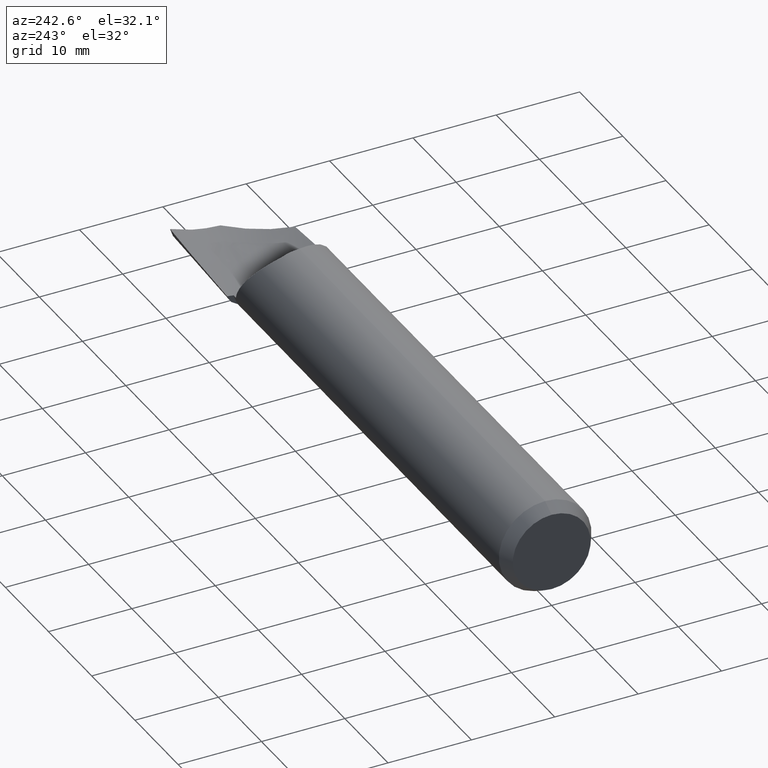
[diagram: clean part render]
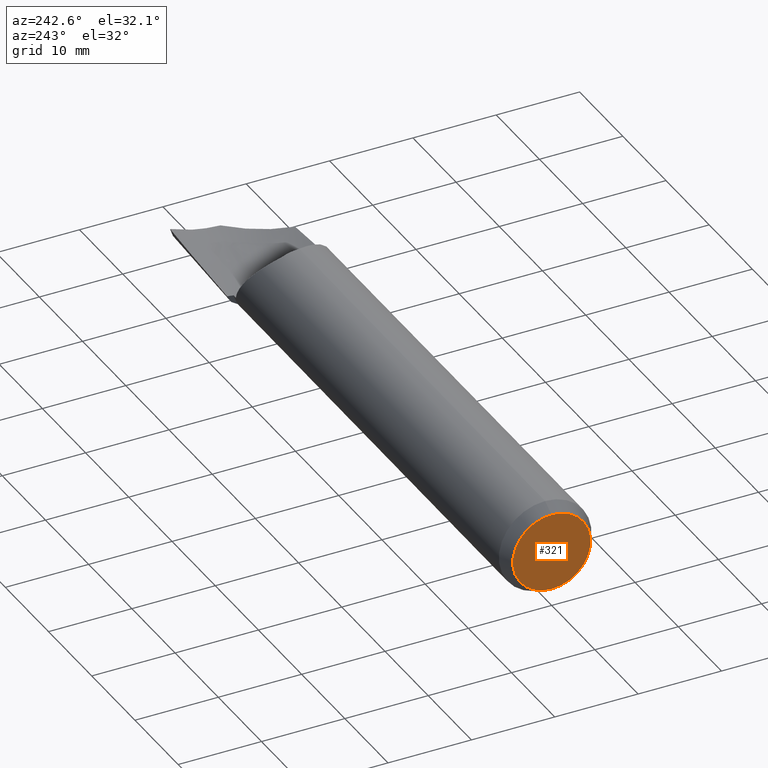
[diagram: same view with one face highlighted and labeled with its STEP entity id]
A machine part, auxiliary view. The second image highlights one B-rep face of the part: STEP entity #321.
In plain terms, the highlighted planar face has unit normal (1, 0, 0).
Its self-contained STEP definition (entity closure, byte-faithful):
#3 = DIRECTION ( 'NONE',  ( 1.000000000000000000, 0.000000000000000000, 0.000000000000000000 ) ) ;
#15 = VERTEX_POINT ( 'NONE', #84 ) ;
#21 = DIRECTION ( 'NONE',  ( 0.000000000000000000, 0.000000000000000000, 1.000000000000000000 ) ) ;
#23 = CARTESIAN_POINT ( 'NONE',  ( 0.000000000000000000, 0.000000000000000000, 0.000000000000000000 ) ) ;
#55 = CIRCLE ( 'NONE', #308, 0.1840089838486222984 ) ;
#63 = VERTEX_POINT ( 'NONE', #724 ) ;
#84 = CARTESIAN_POINT ( 'NONE',  ( 0.000000000000000000, 2.465575178590705122E-17, 0.1840089838486222984 ) ) ;
#132 = CARTESIAN_POINT ( 'NONE',  ( 0.000000000000000000, 0.000000000000000000, 0.000000000000000000 ) ) ;
#141 = ORIENTED_EDGE ( 'NONE', *, *, #593, .T. ) ;
#159 = AXIS2_PLACEMENT_3D ( 'NONE', #624, #3, #386 ) ;
#180 = EDGE_CURVE ( 'NONE', #15, #63, #721, .T. ) ;
#218 = EDGE_LOOP ( 'NONE', ( #141, #337 ) ) ;
#223 = PLANE ( 'NONE',  #159 ) ;
#238 = DIRECTION ( 'NONE',  ( 0.000000000000000000, 0.000000000000000000, 1.000000000000000000 ) ) ;
#250 = DIRECTION ( 'NONE',  ( -1.000000000000000000, -0.000000000000000000, -0.000000000000000000 ) ) ;
#284 = AXIS2_PLACEMENT_3D ( 'NONE', #132, #250, #21 ) ;
#291 = DIRECTION ( 'NONE',  ( -1.000000000000000000, -0.000000000000000000, -0.000000000000000000 ) ) ;
#308 = AXIS2_PLACEMENT_3D ( 'NONE', #23, #291, #238 ) ;
#321 = ADVANCED_FACE ( 'NONE', ( #678 ), #223, .F. ) ;
#337 = ORIENTED_EDGE ( 'NONE', *, *, #180, .T. ) ;
#386 = DIRECTION ( 'NONE',  ( 0.000000000000000000, 0.000000000000000000, -1.000000000000000000 ) ) ;
#593 = EDGE_CURVE ( 'NONE', #63, #15, #55, .T. ) ;
#624 = CARTESIAN_POINT ( 'NONE',  ( 0.000000000000000000, 0.000000000000000000, 0.000000000000000000 ) ) ;
#678 = FACE_OUTER_BOUND ( 'NONE', #218, .T. ) ;
#721 = CIRCLE ( 'NONE', #284, 0.1840089838486222984 ) ;
#724 = CARTESIAN_POINT ( 'NONE',  ( 0.000000000000000000, 0.000000000000000000, -0.1840089838486222984 ) ) ;